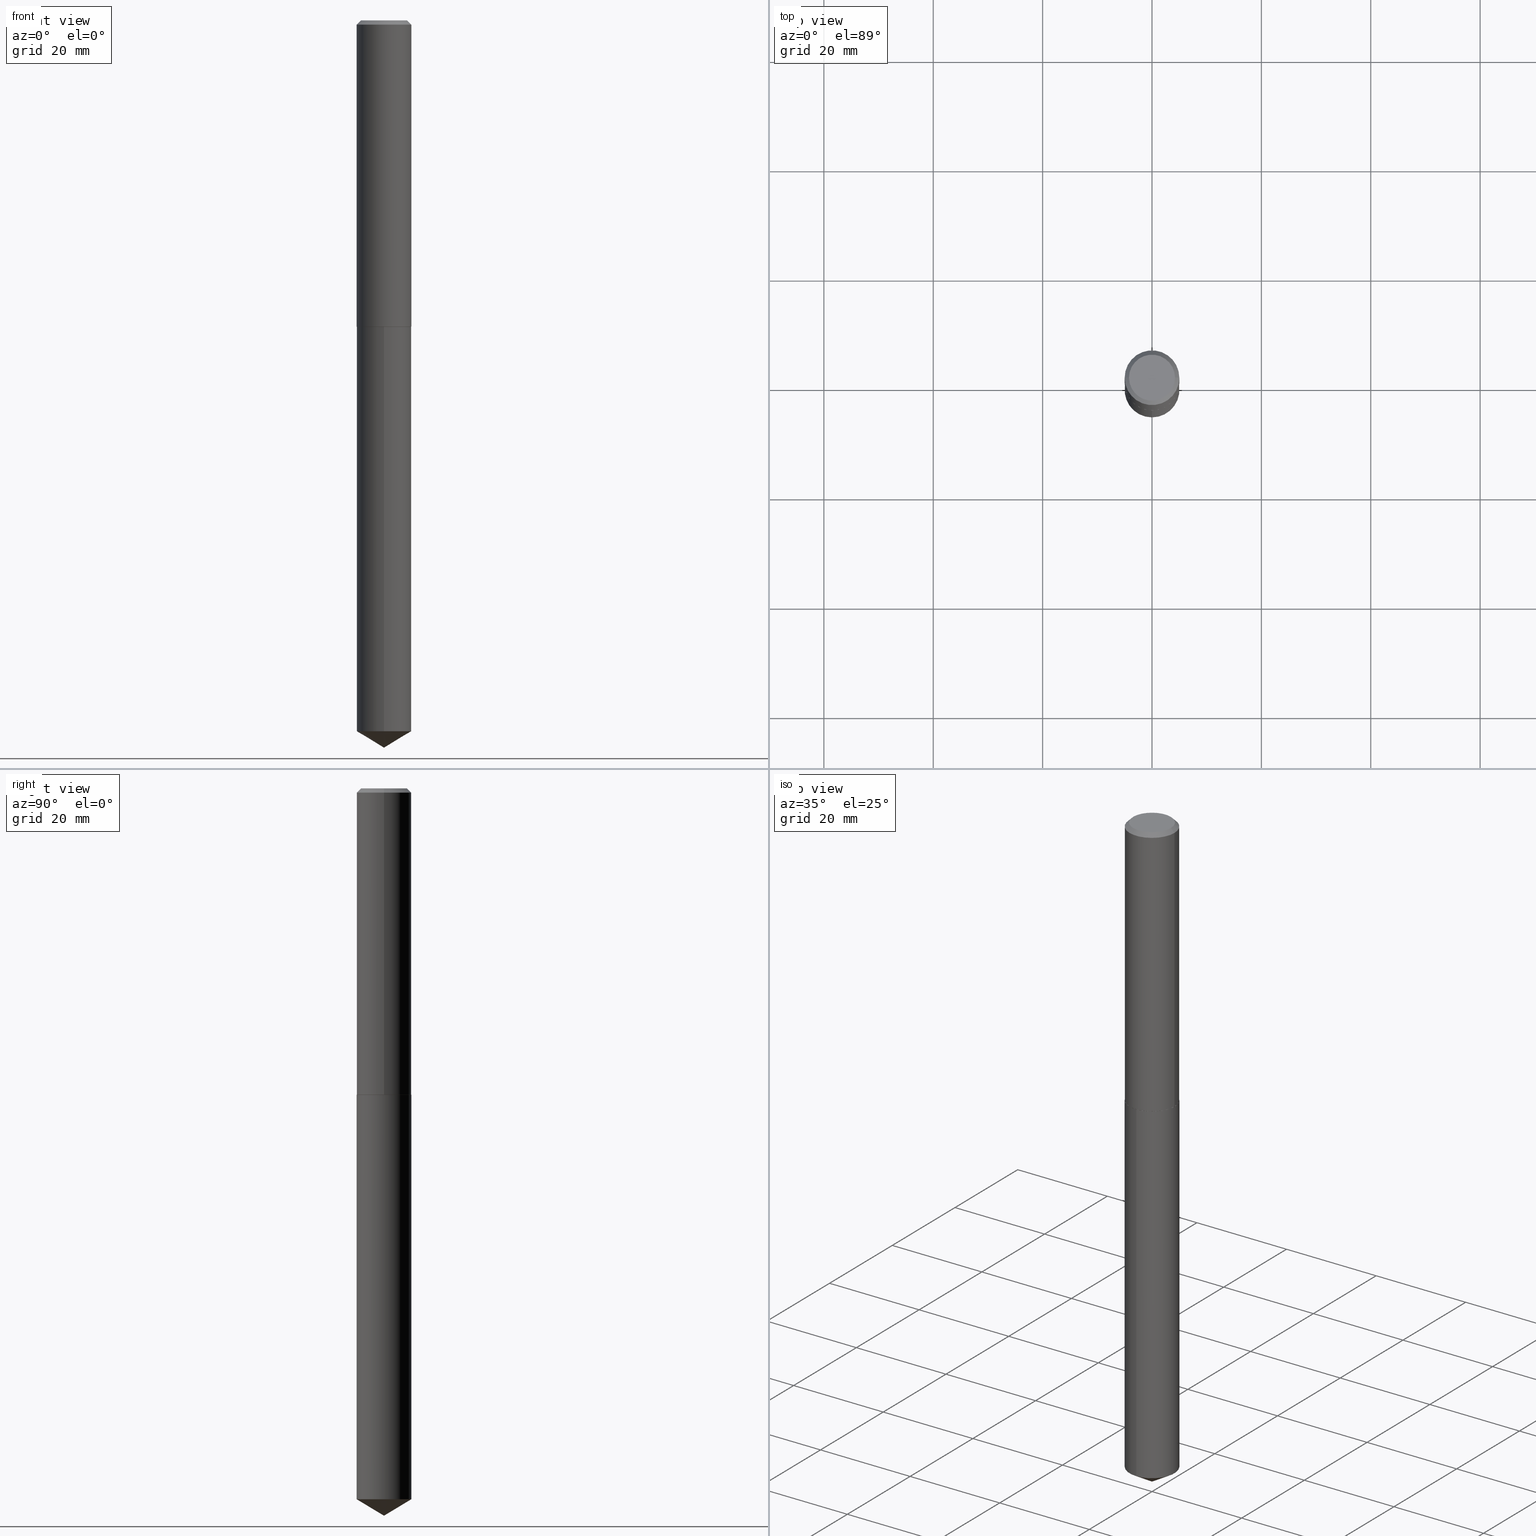
[diagram: canonical four-view strip — front | top / right | iso, engineering-drawing reading convention]
A machine part, canonical four-view strip (front | top / right | iso — engineering-drawing reading convention). The complete STEP part file that produces these views, byte-faithful:
ISO-10303-21;
HEADER;
FILE_DESCRIPTION (( 'STEP AP203' ),
    '1' );
FILE_NAME ('61043.STEP',
    '2024-04-23T02:37:16',
    ( '' ),
    ( '' ),
    'SwSTEP 2.0',
    'SolidWorks 2023',
    '' );
FILE_SCHEMA (( 'CONFIG_CONTROL_DESIGN' ));
ENDSEC;

DATA;
#1 = DIRECTION ( 'NONE',  ( -5.985567269335961790E-15, -0.8571673007021131108, 0.5150380749100526012 ) ) ;
#2 = DIRECTION ( 'NONE',  ( -2.445583250682407227E-29, 3.491317447809277816E-15, 1.000000000000000000 ) ) ;
#3 = EDGE_CURVE ( 'NONE', #120, #194, #353, .T. ) ;
#4 = PERSON_AND_ORGANIZATION_ROLE ( 'creator' ) ;
#5 = CARTESIAN_POINT ( 'NONE',  ( 1.251604855045994571E-28, -1.786864677296200502E-14, -5.117920587144426214 ) ) ;
#6 = ORIENTED_EDGE ( 'NONE', *, *, #260, .F. ) ;
#7 = DIRECTION ( 'NONE',  ( -2.445583250682407227E-29, 3.491317447809277816E-15, 1.000000000000000000 ) ) ;
#8 = ORIENTED_EDGE ( 'NONE', *, *, #22, .T. ) ;
#9 = DIRECTION ( 'NONE',  ( -6.982962677686265133E-15, -1.000000000000000000, 4.163344669033674845E-15 ) ) ;
#10 = ADVANCED_FACE ( 'NONE', ( #54 ), #164, .T. ) ;
#11 = UNCERTAINTY_MEASURE_WITH_UNIT (LENGTH_MEASURE( 1.000000000000000082E-05 ), #186, 'distance_accuracy_value', 'NONE');
#12 = CARTESIAN_POINT ( 'NONE',  ( 0.1655999999999999972, -1.297848145565570390E-15, 1.206277097168728884E-18 ) ) ;
#13 = DIRECTION ( 'NONE',  ( -2.445583250682407227E-29, 3.491317447809277816E-15, 1.000000000000000000 ) ) ;
#14 = DIRECTION ( 'NONE',  ( -2.445468806185136597E-29, 3.491481338843145583E-15, 1.000000000000000000 ) ) ;
#15 = PRODUCT_DEFINITION ( 'UNKNOWN', '', #365, #298 ) ;
#16 = PLANE ( 'NONE',  #43 ) ;
#17 = CALENDAR_DATE ( 2024, 22, 4 ) ;
#18 = EDGE_LOOP ( 'NONE', ( #278, #119, #130 ) ) ;
#19 = PERSON_AND_ORGANIZATION ( #39, #315 ) ;
#20 = CARTESIAN_POINT ( 'NONE',  ( -2.949913012720698115E-47, 4.211693974208535336E-33, 1.206277097160147711E-18 ) ) ;
#21 = DATE_AND_TIME ( #349, #299 ) ;
#22 = EDGE_CURVE ( 'NONE', #194, #33, #343, .T. ) ;
#23 = APPROVAL_STATUS ( 'not_yet_approved' ) ;
#24 = MANIFOLD_SOLID_BREP ( 'Body-Move/Copy2[1]', #141 ) ;
#25 =( NAMED_UNIT ( * ) SI_UNIT ( $, .STERADIAN. ) SOLID_ANGLE_UNIT ( ) );
#26 = LOCAL_TIME ( 22, 37, 16.00000000000000000, #53 ) ;
#27 = LINE ( 'NONE', #88, #327 ) ;
#28 = EDGE_CURVE ( 'NONE', #303, #30, #264, .T. ) ;
#29 = EDGE_LOOP ( 'NONE', ( #219, #8, #308, #348 ) ) ;
#30 = VERTEX_POINT ( 'NONE', #242 ) ;
#31 = LINE ( 'NONE', #267, #370 ) ;
#32 = AXIS2_PLACEMENT_3D ( 'NONE', #71, #302, #213 ) ;
#33 = VERTEX_POINT ( 'NONE', #37 ) ;
#34 = CARTESIAN_POINT ( 'NONE',  ( 0.000000000000000000, 0.000000000000000000, 0.000000000000000000 ) ) ;
#35 = ADVANCED_FACE ( 'NONE', ( #271 ), #96, .F. ) ;
#36 = APPROVAL_DATE_TIME ( #179, #346 ) ;
#37 = CARTESIAN_POINT ( 'NONE',  ( 1.398703375343882428E-15, 0.1968499999999922812, -2.204700000000001658 ) ) ;
#38 = CARTESIAN_POINT ( 'NONE',  ( 5.391525076996372398E-29, -7.697668907747486281E-15, -2.204700000000000770 ) ) ;
#39 = PERSON ( 'UNSPECIFIED', 'UNSPECIFIED', 'UNSPECIFIED', ('UNSPECIFIED'), ('UNSPECIFIED'), ('UNSPECIFIED') ) ;
#40 = FACE_OUTER_BOUND ( 'NONE', #273, .T. ) ;
#41 = ORIENTED_EDGE ( 'NONE', *, *, #151, .T. ) ;
#42 = VECTOR ( 'NONE', #94, 39.37007874015748143 ) ;
#43 = AXIS2_PLACEMENT_3D ( 'NONE', #133, #157, #247 ) ;
#44 = CARTESIAN_POINT ( 'NONE',  ( 5.390302342593279597E-29, -7.695923167078063988E-15, -2.204200000000000603 ) ) ;
#45 = FACE_OUTER_BOUND ( 'NONE', #240, .T. ) ;
#46 =( LENGTH_UNIT ( ) NAMED_UNIT ( * ) SI_UNIT ( $, .METRE. ) );
#47 = CARTESIAN_POINT ( 'NONE',  ( 0.1963500000000006351, -9.068773629511189615E-15, -2.204700000000000770 ) ) ;
#48 = LINE ( 'NONE', #195, #203 ) ;
#49 = EDGE_CURVE ( 'NONE', #347, #290, #27, .T. ) ;
#50 = FACE_OUTER_BOUND ( 'NONE', #351, .T. ) ;
#51 = DIRECTION ( 'NONE',  ( 1.000000000000000000, -6.982962677686266711E-15, 4.876220105038334323E-29 ) ) ;
#52 = APPROVAL_STATUS ( 'not_yet_approved' ) ;
#53 = COORDINATED_UNIVERSAL_TIME_OFFSET ( 5, 0, .BEHIND. ) ;
#54 = FACE_OUTER_BOUND ( 'NONE', #192, .T. ) ;
#55 = DIRECTION ( 'NONE',  ( -6.982962677686265133E-15, -1.000000000000000000, 5.551126225378232601E-15 ) ) ;
#56 = PERSON_AND_ORGANIZATION ( #39, #315 ) ;
#57 = ORIENTED_EDGE ( 'NONE', *, *, #147, .T. ) ;
#58 = DIRECTION ( 'NONE',  ( -2.445583250682407227E-29, 3.491317447809277816E-15, 1.000000000000000000 ) ) ;
#59 = CIRCLE ( 'NONE', #198, 0.1968500000000000250 ) ;
#60 = AXIS2_PLACEMENT_3D ( 'NONE', #100, #314, #279 ) ;
#61 = CONICAL_SURFACE ( 'NONE', #136, 0.1968500000000002748, 0.7853981633972092480 ) ;
#62 = CARTESIAN_POINT ( 'NONE',  ( 0.1968500000000000250, -1.459597822700175121E-15, -0.03125000000000020123 ) ) ;
#63 = ADVANCED_FACE ( 'NONE', ( #145 ), #280, .T. ) ;
#64 = CARTESIAN_POINT ( 'NONE',  ( 5.391525076996372398E-29, -7.697668907747486281E-15, -2.204700000000000770 ) ) ;
#65 = PERSON_AND_ORGANIZATION_ROLE ( 'classification_officer' ) ;
#66 = DIRECTION ( 'NONE',  ( -2.445468806185136597E-29, 3.491481338843145583E-15, 1.000000000000000000 ) ) ;
#67 = CLOSED_SHELL ( 'NONE', ( #366, #117, #380, #355, #169, #201, #63, #336 ) ) ;
#68 = CC_DESIGN_APPROVAL ( #285, ( #235 ) ) ;
#69 = COORDINATED_UNIVERSAL_TIME_OFFSET ( 5, 0, .BEHIND. ) ;
#70 = ORIENTED_EDGE ( 'NONE', *, *, #322, .F. ) ;
#71 = CARTESIAN_POINT ( 'NONE',  ( 5.390302342593279597E-29, -7.695923167078063988E-15, -2.204200000000000603 ) ) ;
#72 = ORIENTED_EDGE ( 'NONE', *, *, #113, .F. ) ;
#73 = CIRCLE ( 'NONE', #237, 0.1655999999999999972 ) ;
#74 = CC_DESIGN_PERSON_AND_ORGANIZATION_ASSIGNMENT ( #122, #206, ( #365 ) ) ;
#75 = DIRECTION ( 'NONE',  ( 1.000000000000000000, -6.982962677686264344E-15, 0.000000000000000000 ) ) ;
#76 = DIRECTION ( 'NONE',  ( -6.982962677686265133E-15, -1.000000000000000000, 5.551126225378232601E-15 ) ) ;
#77 = DIRECTION ( 'NONE',  ( -1.000000000000000000, 6.982962677686265922E-15, 0.000000000000000000 ) ) ;
#78 = LENGTH_MEASURE_WITH_UNIT ( LENGTH_MEASURE( 0.02539999999999999897 ), #46 );
#79 = DIRECTION ( 'NONE',  ( 1.000000000000000000, -6.982962677686265922E-15, 4.876176775795935793E-29 ) ) ;
#80 = DIRECTION ( 'NONE',  ( 1.000000000000000000, -6.982962677686264344E-15, 0.000000000000000000 ) ) ;
#81 = PERSON_AND_ORGANIZATION ( #39, #315 ) ;
#82 = CC_DESIGN_APPROVAL ( #346, ( #365 ) ) ;
#83 = DIRECTION ( 'NONE',  ( 1.000000000000000000, 0.000000000000000000, 0.000000000000000000 ) ) ;
#84 = DIRECTION ( 'NONE',  ( 2.445583250682406946E-29, -3.491317447809277816E-15, -1.000000000000000000 ) ) ;
#85 = PRODUCT_DEFINITION_SHAPE ( 'NONE', 'NONE',  #15 ) ;
#86 =( NAMED_UNIT ( * ) PLANE_ANGLE_UNIT ( ) SI_UNIT ( $, .RADIAN. ) );
#87 = CC_DESIGN_PERSON_AND_ORGANIZATION_ASSIGNMENT ( #319, #143, ( #297 ) ) ;
#88 = CARTESIAN_POINT ( 'NONE',  ( -0.1968500000000000250, 1.265487411263692705E-15, -0.03125000000000020123 ) ) ;
#89 = AXIS2_PLACEMENT_3D ( 'NONE', #321, #128, #374 ) ;
#90 = MECHANICAL_CONTEXT ( 'NONE', #286, 'mechanical' ) ;
#91 = CC_DESIGN_SECURITY_CLASSIFICATION ( #235, ( #365 ) ) ;
#92 = CARTESIAN_POINT ( 'NONE',  ( 5.391525076996372398E-29, -7.697668907747486281E-15, -2.204700000000000770 ) ) ;
#93 = CARTESIAN_POINT ( 'NONE',  ( 1.398703375343882428E-15, 0.1968499999999821504, -5.117920587144427103 ) ) ;
#94 = DIRECTION ( 'NONE',  ( -0.7071067811863784858, 7.493145998869743582E-15, 0.7071067811867165487 ) ) ;
#95 = CALENDAR_DATE ( 2024, 22, 4 ) ;
#96 = PLANE ( 'NONE',  #176 ) ;
#97 = DIRECTION ( 'NONE',  ( -2.445583250682407227E-29, 3.491317447809277816E-15, 1.000000000000000000 ) ) ;
#98 = EDGE_LOOP ( 'NONE', ( #204, #165, #132, #296 ) ) ;
#99 = EDGE_CURVE ( 'NONE', #144, #33, #291, .T. ) ;
#100 = CARTESIAN_POINT ( 'NONE',  ( -2.949913012720698115E-47, 4.211693974208535336E-33, 1.206277097160147711E-18 ) ) ;
#101 = VERTEX_POINT ( 'NONE', #47 ) ;
#102 = CONICAL_SURFACE ( 'NONE', #32, 0.1968500000000002748, 0.7853981633972092480 ) ;
#103 = DIRECTION ( 'NONE',  ( -2.445583250682407227E-29, 3.491317447809277816E-15, 1.000000000000000000 ) ) ;
#104 = CARTESIAN_POINT ( 'NONE',  ( 0.1968500000000002748, -9.070519370180607174E-15, -2.204200000000000603 ) ) ;
#105 = DIRECTION ( 'NONE',  ( -6.982962677686265922E-15, -1.000000000000000000, 3.468864327941552799E-15 ) ) ;
#106 = CARTESIAN_POINT ( 'NONE',  ( -0.1963500000000006351, -6.299869018908415824E-15, -2.204700000000000770 ) ) ;
#107 = VECTOR ( 'NONE', #309, 39.37007874015748143 ) ;
#108 = DIRECTION ( 'NONE',  ( -2.445468806185136597E-29, 3.491481338843145583E-15, 1.000000000000000000 ) ) ;
#109 = ORIENTED_EDGE ( 'NONE', *, *, #28, .F. ) ;
#110 = CALENDAR_DATE ( 2024, 22, 4 ) ;
#111 = AXIS2_PLACEMENT_3D ( 'NONE', #253, #227, #317 ) ;
#112 = ORIENTED_EDGE ( 'NONE', *, *, #99, .T. ) ;
#113 = EDGE_CURVE ( 'NONE', #347, #303, #73, .T. ) ;
#114 = ORIENTED_EDGE ( 'NONE', *, *, #322, .T. ) ;
#115 = APPROVAL_PERSON_ORGANIZATION ( #56, #285, #167 ) ;
#116 = LINE ( 'NONE', #334, #388 ) ;
#117 = ADVANCED_FACE ( 'NONE', ( #342 ), #287, .T. ) ;
#118 = PRODUCT_RELATED_PRODUCT_CATEGORY ( 'detail', '', ( #297 ) ) ;
#119 = ORIENTED_EDGE ( 'NONE', *, *, #220, .T. ) ;
#120 = VERTEX_POINT ( 'NONE', #161 ) ;
#121 = CIRCLE ( 'NONE', #378, 0.1968500000000000250 ) ;
#122 = PERSON_AND_ORGANIZATION ( #39, #315 ) ;
#123 = CC_DESIGN_DATE_AND_TIME_ASSIGNMENT ( #390, #152, ( #15 ) ) ;
#124 = DIRECTION ( 'NONE',  ( -6.982962677686265133E-15, -1.000000000000000000, 4.163344669033674845E-15 ) ) ;
#125 = DIRECTION ( 'NONE',  ( -6.982962677686265922E-15, -1.000000000000000000, 3.468864327941552799E-15 ) ) ;
#126 = DIRECTION ( 'NONE',  ( -2.445468806185136877E-29, 3.491481338843145188E-15, 1.000000000000000000 ) ) ;
#127 = LOCAL_TIME ( 22, 37, 16.00000000000000000, #170 ) ;
#128 = DIRECTION ( 'NONE',  ( -2.445583250682407227E-29, 3.491317447809277816E-15, 1.000000000000000000 ) ) ;
#129 = FACE_OUTER_BOUND ( 'NONE', #98, .T. ) ;
#130 = ORIENTED_EDGE ( 'NONE', *, *, #147, .F. ) ;
#131 = CARTESIAN_POINT ( 'NONE',  ( -0.1968500000000002748, -6.297219791734305412E-15, -2.204200000000000603 ) ) ;
#132 = ORIENTED_EDGE ( 'NONE', *, *, #183, .T. ) ;
#133 = CARTESIAN_POINT ( 'NONE',  ( -1.474956506360349058E-47, 2.105846987104267668E-33, 6.031385485800738553E-19 ) ) ;
#134 = CIRCLE ( 'NONE', #358, 0.1963500000000006351 ) ;
#135 = EDGE_LOOP ( 'NONE', ( #109, #72, #379, #254 ) ) ;
#136 = AXIS2_PLACEMENT_3D ( 'NONE', #223, #163, #184 ) ;
#137 = EDGE_CURVE ( 'NONE', #243, #194, #138, .T. ) ;
#138 = LINE ( 'NONE', #369, #153 ) ;
#139 = COORDINATED_UNIVERSAL_TIME_OFFSET ( 5, 0, .BEHIND. ) ;
#140 = ORIENTED_EDGE ( 'NONE', *, *, #137, .T. ) ;
#141 = CLOSED_SHELL ( 'NONE', ( #178, #293, #236, #10, #35 ) ) ;
#142 = CONICAL_SURFACE ( 'NONE', #282, 65.52281426576921319, 1.029744258676659641 ) ;
#143 = PERSON_AND_ORGANIZATION_ROLE ( 'design_owner' ) ;
#144 = VERTEX_POINT ( 'NONE', #344 ) ;
#145 = FACE_OUTER_BOUND ( 'NONE', #135, .T. ) ;
#146 = AXIS2_PLACEMENT_3D ( 'NONE', #92, #363, #208 ) ;
#147 = EDGE_CURVE ( 'NONE', #194, #120, #266, .T. ) ;
#148 = FACE_OUTER_BOUND ( 'NONE', #18, .T. ) ;
#149 = CARTESIAN_POINT ( 'NONE',  ( -0.1968500000000002748, -6.297219791734305412E-15, -2.204200000000000603 ) ) ;
#150 = ORIENTED_EDGE ( 'NONE', *, *, #183, .F. ) ;
#151 = EDGE_CURVE ( 'NONE', #269, #290, #158, .T. ) ;
#152 = DATE_TIME_ROLE ( 'creation_date' ) ;
#153 = VECTOR ( 'NONE', #381, 39.37007874015748143 ) ;
#154 = MANIFOLD_SOLID_BREP ( 'Body-Move/Copy2[2]', #67 ) ;
#155 = CARTESIAN_POINT ( 'NONE',  ( 5.391525076996372398E-29, -7.697668907747486281E-15, -2.204700000000000770 ) ) ;
#156 = ORIENTED_EDGE ( 'NONE', *, *, #166, .T. ) ;
#157 = DIRECTION ( 'NONE',  ( 2.438088387897960049E-29, -3.491481338843145188E-15, -1.000000000000000000 ) ) ;
#158 = LINE ( 'NONE', #248, #241 ) ;
#159 = CARTESIAN_POINT ( 'NONE',  ( 1.280556301722322257E-28, -1.828123642021894389E-14, -5.236200000000000188 ) ) ;
#160 = AXIS2_PLACEMENT_3D ( 'NONE', #258, #188, #376 ) ;
#161 = CARTESIAN_POINT ( 'NONE',  ( -1.374596203102416574E-15, -0.1968500000000178718, -5.117920587144425326 ) ) ;
#162 = DIRECTION ( 'NONE',  ( 1.000000000000000000, -6.982962677686265922E-15, 0.000000000000000000 ) ) ;
#163 = DIRECTION ( 'NONE',  ( -2.445468806185136597E-29, 3.491481338843145583E-15, 1.000000000000000000 ) ) ;
#164 = CYLINDRICAL_SURFACE ( 'NONE', #89, 0.1968500000000000250 ) ;
#165 = ORIENTED_EDGE ( 'NONE', *, *, #28, .T. ) ;
#166 = EDGE_CURVE ( 'NONE', #120, #144, #116, .T. ) ;
#167 = APPROVAL_ROLE ( '' ) ;
#168 = AXIS2_PLACEMENT_3D ( 'NONE', #372, #345, #79 ) ;
#169 = ADVANCED_FACE ( 'NONE', ( #300 ), #102, .T. ) ;
#170 = COORDINATED_UNIVERSAL_TIME_OFFSET ( 5, 0, .BEHIND. ) ;
#171 = ORIENTED_EDGE ( 'NONE', *, *, #225, .F. ) ;
#172 = AXIS2_PLACEMENT_3D ( 'NONE', #245, #7, #125 ) ;
#173 = LOCAL_TIME ( 22, 37, 16.00000000000000000, #69 ) ;
#174 = DIRECTION ( 'NONE',  ( -0.7071067811865453523, 2.468850131082234184E-15, -0.7071067811865496822 ) ) ;
#175 = ORIENTED_EDGE ( 'NONE', *, *, #328, .F. ) ;
#176 = AXIS2_PLACEMENT_3D ( 'NONE', #64, #84, #234 ) ;
#177 = LINE ( 'NONE', #149, #42 ) ;
#178 = ADVANCED_FACE ( 'NONE', ( #337 ), #335, .T. ) ;
#179 = DATE_AND_TIME ( #95, #173 ) ;
#180 = CARTESIAN_POINT ( 'NONE',  ( 7.642090019328601786E-31, -1.091087918388490144E-16, -0.03125000000000020123 ) ) ;
#181 = LINE ( 'NONE', #104, #107 ) ;
#182 = ORIENTED_EDGE ( 'NONE', *, *, #283, .T. ) ;
#183 = EDGE_CURVE ( 'NONE', #30, #290, #121, .T. ) ;
#184 = DIRECTION ( 'NONE',  ( 1.000000000000000000, -6.982962677686264344E-15, 0.000000000000000000 ) ) ;
#185 = CARTESIAN_POINT ( 'NONE',  ( 1.398703375343810839E-15, 0.1968499999999923367, -2.204700000000001658 ) ) ;
#186 =( CONVERSION_BASED_UNIT ( 'INCH', #78 ) LENGTH_UNIT ( ) NAMED_UNIT ( #295 ) );
#187 = AXIS2_PLACEMENT_3D ( 'NONE', #310, #13, #218 ) ;
#188 = DIRECTION ( 'NONE',  ( -2.445468806185136597E-29, 3.491481338843145583E-15, 1.000000000000000000 ) ) ;
#189 = LOCAL_TIME ( 22, 37, 16.00000000000000000, #383 ) ;
#190 = CARTESIAN_POINT ( 'NONE',  ( 5.391525076996372398E-29, -7.697668907747486281E-15, -2.204700000000000770 ) ) ;
#191 = APPROVAL ( #52, 'UNSPECIFIED' ) ;
#192 = EDGE_LOOP ( 'NONE', ( #244, #57, #156, #326 ) ) ;
#193 = ORIENTED_EDGE ( 'NONE', *, *, #306, .T. ) ;
#194 = VERTEX_POINT ( 'NONE', #93 ) ;
#195 = CARTESIAN_POINT ( 'NONE',  ( 0.1968500000000001360, -1.374596203102542594E-15, 9.598753983154306463E-30 ) ) ;
#196 = CC_DESIGN_PERSON_AND_ORGANIZATION_ASSIGNMENT ( #238, #65, ( #235 ) ) ;
#197 = PERSON_AND_ORGANIZATION_ROLE ( 'creator' ) ;
#198 = AXIS2_PLACEMENT_3D ( 'NONE', #368, #108, #162 ) ;
#199 = AXIS2_PLACEMENT_3D ( 'NONE', #221, #341, #77 ) ;
#200 = DATE_TIME_ROLE ( 'classification_date' ) ;
#201 = ADVANCED_FACE ( 'NONE', ( #40 ), #275, .T. ) ;
#202 = CIRCLE ( 'NONE', #274, 0.1968500000000000250 ) ;
#203 = VECTOR ( 'NONE', #126, 39.37007874015748143 ) ;
#204 = ORIENTED_EDGE ( 'NONE', *, *, #251, .F. ) ;
#205 = ORIENTED_EDGE ( 'NONE', *, *, #268, .T. ) ;
#206 = PERSON_AND_ORGANIZATION_ROLE ( 'design_supplier' ) ;
#207 = EDGE_CURVE ( 'NONE', #101, #324, #210, .T. ) ;
#208 = DIRECTION ( 'NONE',  ( 1.000000000000000000, -6.982962677686268288E-15, 0.000000000000000000 ) ) ;
#209 = ORIENTED_EDGE ( 'NONE', *, *, #207, .T. ) ;
#210 = CIRCLE ( 'NONE', #146, 0.1963500000000006351 ) ;
#211 = DIRECTION ( 'NONE',  ( 0.7071067811865453523, -7.319954787623248157E-15, -0.7071067811865496822 ) ) ;
#212 = ADVANCED_BREP_SHAPE_REPRESENTATION ( '61043', ( #24, #154, #228 ), #292 ) ;
#213 = DIRECTION ( 'NONE',  ( 1.000000000000000000, -6.982962677686264344E-15, 0.000000000000000000 ) ) ;
#214 = ORIENTED_EDGE ( 'NONE', *, *, #225, .T. ) ;
#215 = AXIS2_PLACEMENT_3D ( 'NONE', #38, #97, #124 ) ;
#216 = CARTESIAN_POINT ( 'NONE',  ( -0.1968500000000000250, -2.503812604114697574E-15, -0.03125000000000020123 ) ) ;
#217 = AXIS2_PLACEMENT_3D ( 'NONE', #375, #14, #75 ) ;
#218 = DIRECTION ( 'NONE',  ( -6.982962677686265133E-15, -1.000000000000000000, 4.163344669033674845E-15 ) ) ;
#219 = ORIENTED_EDGE ( 'NONE', *, *, #3, .T. ) ;
#220 = EDGE_CURVE ( 'NONE', #243, #120, #31, .T. ) ;
#221 = CARTESIAN_POINT ( 'NONE',  ( 7.642090019328601786E-31, -1.091087918388490144E-16, -0.03125000000000020123 ) ) ;
#222 = ORIENTED_EDGE ( 'NONE', *, *, #328, .T. ) ;
#223 = CARTESIAN_POINT ( 'NONE',  ( 5.390302342593279597E-29, -7.695923167078063988E-15, -2.204200000000000603 ) ) ;
#224 = CARTESIAN_POINT ( 'NONE',  ( -0.1655999999999999972, 1.210933015344269141E-15, 1.206277097151870064E-18 ) ) ;
#225 = EDGE_CURVE ( 'NONE', #324, #269, #177, .T. ) ;
#226 = CIRCLE ( 'NONE', #60, 0.1655999999999999972 ) ;
#227 = DIRECTION ( 'NONE',  ( 2.445468806185136597E-29, -3.491481338843145583E-15, -1.000000000000000000 ) ) ;
#228 = AXIS2_PLACEMENT_3D ( 'NONE', #356, #352, #83 ) ;
#229 = CARTESIAN_POINT ( 'NONE',  ( 0.1968500000000002748, -9.070519370180607174E-15, -2.204200000000000603 ) ) ;
#230 = CARTESIAN_POINT ( 'NONE',  ( 1.251604855045994571E-28, -1.786864677296200502E-14, -5.117920587144426214 ) ) ;
#231 = EDGE_LOOP ( 'NONE', ( #171, #182, #222, #311 ) ) ;
#232 = DATE_AND_TIME ( #110, #189 ) ;
#233 = APPROVAL_DATE_TIME ( #289, #285 ) ;
#234 = DIRECTION ( 'NONE',  ( 6.982962677686265922E-15, 1.000000000000000000, -3.491317447809277816E-15 ) ) ;
#235 = SECURITY_CLASSIFICATION ( '', '', #265 ) ;
#236 = ADVANCED_FACE ( 'NONE', ( #148 ), #261, .T. ) ;
#237 = AXIS2_PLACEMENT_3D ( 'NONE', #20, #340, #51 ) ;
#238 = PERSON_AND_ORGANIZATION ( #39, #315 ) ;
#239 = DIRECTION ( 'NONE',  ( -2.445468806185136597E-29, 3.491481338843145583E-15, 1.000000000000000000 ) ) ;
#240 = EDGE_LOOP ( 'NONE', ( #389, #301 ) ) ;
#241 = VECTOR ( 'NONE', #250, 39.37007874015748143 ) ;
#242 = CARTESIAN_POINT ( 'NONE',  ( 0.1968500000000000250, -1.483704994941390709E-15, -0.03125000000000020123 ) ) ;
#243 = VERTEX_POINT ( 'NONE', #159 ) ;
#244 = ORIENTED_EDGE ( 'NONE', *, *, #22, .F. ) ;
#245 = CARTESIAN_POINT ( 'NONE',  ( -8.347749444353658184E-28, 1.191718450763556276E-13, 34.13387874015747769 ) ) ;
#246 = CC_DESIGN_PERSON_AND_ORGANIZATION_ASSIGNMENT ( #81, #197, ( #15 ) ) ;
#247 = DIRECTION ( 'NONE',  ( -1.000000000000000000, 6.982962677686265922E-15, -4.876176775795935793E-29 ) ) ;
#248 = CARTESIAN_POINT ( 'NONE',  ( -0.1968500000000001360, 1.398703375343758182E-15, -9.682923725166790684E-30 ) ) ;
#249 = CARTESIAN_POINT ( 'NONE',  ( -8.347749444353658184E-28, 1.191718450763556276E-13, 34.13387874015747769 ) ) ;
#250 = DIRECTION ( 'NONE',  ( -2.445468806185136877E-29, 3.491481338843145188E-15, 1.000000000000000000 ) ) ;
#251 = EDGE_CURVE ( 'NONE', #303, #347, #226, .T. ) ;
#252 = FACE_OUTER_BOUND ( 'NONE', #312, .T. ) ;
#253 = CARTESIAN_POINT ( 'NONE',  ( 7.642090019328601786E-31, -1.091087918388490144E-16, -0.03125000000000020123 ) ) ;
#254 = ORIENTED_EDGE ( 'NONE', *, *, #260, .T. ) ;
#255 = FACE_OUTER_BOUND ( 'NONE', #373, .T. ) ;
#256 = AXIS2_PLACEMENT_3D ( 'NONE', #34, #239, #360 ) ;
#257 = CONICAL_SURFACE ( 'NONE', #199, 0.1968500000000000250, 0.7853981633974452814 ) ;
#258 = CARTESIAN_POINT ( 'NONE',  ( 0.000000000000000000, 0.000000000000000000, 0.000000000000000000 ) ) ;
#259 = APPROVAL_ROLE ( '' ) ;
#260 = EDGE_CURVE ( 'NONE', #290, #30, #59, .T. ) ;
#261 = CONICAL_SURFACE ( 'NONE', #172, 65.52281426576921319, 1.029744258676659641 ) ;
#262 = CC_DESIGN_DATE_AND_TIME_ASSIGNMENT ( #21, #200, ( #235 ) ) ;
#263 = APPLICATION_PROTOCOL_DEFINITION ( 'international standard', 'config_control_design', 1994, #333 ) ;
#264 = LINE ( 'NONE', #62, #364 ) ;
#265 = SECURITY_CLASSIFICATION_LEVEL ( 'unclassified' ) ;
#266 = CIRCLE ( 'NONE', #305, 0.1968500000000000250 ) ;
#267 = CARTESIAN_POINT ( 'NONE',  ( 1.280505838565695583E-28, -1.828195908134367894E-14, -5.236200000000000188 ) ) ;
#268 = EDGE_CURVE ( 'NONE', #33, #144, #202, .T. ) ;
#269 = VERTEX_POINT ( 'NONE', #131 ) ;
#270 = PERSON_AND_ORGANIZATION ( #39, #315 ) ;
#271 = FACE_OUTER_BOUND ( 'NONE', #272, .T. ) ;
#272 = EDGE_LOOP ( 'NONE', ( #112, #205 ) ) ;
#273 = EDGE_LOOP ( 'NONE', ( #304, #367, #193, #6 ) ) ;
#274 = AXIS2_PLACEMENT_3D ( 'NONE', #190, #377, #9 ) ;
#275 = CYLINDRICAL_SURFACE ( 'NONE', #256, 0.1968500000000001360 ) ;
#276 = CC_DESIGN_PERSON_AND_ORGANIZATION_ASSIGNMENT ( #270, #4, ( #365 ) ) ;
#277 = DIRECTION ( 'NONE',  ( 1.000000000000000000, -6.982962677686268288E-15, 0.000000000000000000 ) ) ;
#278 = ORIENTED_EDGE ( 'NONE', *, *, #137, .F. ) ;
#279 = DIRECTION ( 'NONE',  ( 1.000000000000000000, -6.982962677686266711E-15, 4.876220105038334323E-29 ) ) ;
#280 = CONICAL_SURFACE ( 'NONE', #111, 0.1968500000000000250, 0.7853981633974452814 ) ;
#281 = PLANE ( 'NONE',  #168 ) ;
#282 = AXIS2_PLACEMENT_3D ( 'NONE', #249, #339, #105 ) ;
#283 = EDGE_CURVE ( 'NONE', #324, #101, #134, .T. ) ;
#284 = DIRECTION ( 'NONE',  ( -2.445468806185136597E-29, 3.491481338843145583E-15, 1.000000000000000000 ) ) ;
#285 = APPROVAL ( #23, 'UNSPECIFIED' ) ;
#286 = APPLICATION_CONTEXT ( 'configuration controlled 3d designs of mechanical parts and assemblies' ) ;
#287 = CYLINDRICAL_SURFACE ( 'NONE', #160, 0.1968500000000001360 ) ;
#288 = ORIENTED_EDGE ( 'NONE', *, *, #3, .F. ) ;
#289 = DATE_AND_TIME ( #17, #127 ) ;
#290 = VERTEX_POINT ( 'NONE', #216 ) ;
#291 = CIRCLE ( 'NONE', #187, 0.1968500000000000250 ) ;
#292 =( GEOMETRIC_REPRESENTATION_CONTEXT ( 3 ) GLOBAL_UNCERTAINTY_ASSIGNED_CONTEXT ( ( #11 ) ) GLOBAL_UNIT_ASSIGNED_CONTEXT ( ( #186, #86, #25 ) ) REPRESENTATION_CONTEXT ( 'NONE', 'WORKASPACE' ) );
#293 = ADVANCED_FACE ( 'NONE', ( #252 ), #142, .T. ) ;
#294 = PERSON_AND_ORGANIZATION ( #39, #315 ) ;
#295 = DIMENSIONAL_EXPONENTS ( 1.000000000000000000, 0.000000000000000000, 0.000000000000000000, 0.000000000000000000, 0.000000000000000000, 0.000000000000000000, 0.000000000000000000 ) ;
#296 = ORIENTED_EDGE ( 'NONE', *, *, #49, .F. ) ;
#297 = PRODUCT ( '61043', '61043', '', ( #90 ) ) ;
#298 = DESIGN_CONTEXT ( 'detailed design', #333, 'design' ) ;
#299 = LOCAL_TIME ( 22, 37, 16.00000000000000000, #139 ) ;
#300 = FACE_OUTER_BOUND ( 'NONE', #231, .T. ) ;
#301 = ORIENTED_EDGE ( 'NONE', *, *, #251, .T. ) ;
#302 = DIRECTION ( 'NONE',  ( -2.445468806185136597E-29, 3.491481338843145583E-15, 1.000000000000000000 ) ) ;
#303 = VERTEX_POINT ( 'NONE', #12 ) ;
#304 = ORIENTED_EDGE ( 'NONE', *, *, #151, .F. ) ;
#305 = AXIS2_PLACEMENT_3D ( 'NONE', #230, #103, #76 ) ;
#306 = EDGE_CURVE ( 'NONE', #371, #30, #48, .T. ) ;
#307 = CIRCLE ( 'NONE', #217, 0.1968500000000002748 ) ;
#308 = ORIENTED_EDGE ( 'NONE', *, *, #99, .F. ) ;
#309 = DIRECTION ( 'NONE',  ( 0.7071067811863784858, -2.468850131080486462E-15, 0.7071067811867165487 ) ) ;
#310 = CARTESIAN_POINT ( 'NONE',  ( 5.391525076996372398E-29, -7.697668907747486281E-15, -2.204700000000000770 ) ) ;
#311 = ORIENTED_EDGE ( 'NONE', *, *, #325, .F. ) ;
#312 = EDGE_LOOP ( 'NONE', ( #382, #140, #288 ) ) ;
#313 = VECTOR ( 'NONE', #384, 39.37007874015748143 ) ;
#314 = DIRECTION ( 'NONE',  ( -2.445468806185136597E-29, 3.491481338843145583E-15, 1.000000000000000000 ) ) ;
#315 = ORGANIZATION ( 'UNSPECIFIED', 'UNSPECIFIED', '' ) ;
#316 = DIRECTION ( 'NONE',  ( -2.445468806185136597E-29, 3.491481338843145583E-15, 1.000000000000000000 ) ) ;
#317 = DIRECTION ( 'NONE',  ( -1.000000000000000000, 6.982962677686265922E-15, 0.000000000000000000 ) ) ;
#318 = ORIENTED_EDGE ( 'NONE', *, *, #306, .F. ) ;
#319 = PERSON_AND_ORGANIZATION ( #39, #315 ) ;
#320 = EDGE_LOOP ( 'NONE', ( #114, #41, #150, #318 ) ) ;
#321 = CARTESIAN_POINT ( 'NONE',  ( 5.391525076996372398E-29, -7.697668907747486281E-15, -2.204700000000000770 ) ) ;
#322 = EDGE_CURVE ( 'NONE', #371, #269, #307, .T. ) ;
#323 = CC_DESIGN_APPROVAL ( #191, ( #15 ) ) ;
#324 = VERTEX_POINT ( 'NONE', #106 ) ;
#325 = EDGE_CURVE ( 'NONE', #269, #371, #338, .T. ) ;
#326 = ORIENTED_EDGE ( 'NONE', *, *, #268, .F. ) ;
#327 = VECTOR ( 'NONE', #174, 39.37007874015748143 ) ;
#328 = EDGE_CURVE ( 'NONE', #101, #371, #181, .T. ) ;
#329 = APPROVAL_ROLE ( '' ) ;
#330 = ORIENTED_EDGE ( 'NONE', *, *, #207, .F. ) ;
#331 = APPROVAL_PERSON_ORGANIZATION ( #19, #191, #259 ) ;
#332 = APPROVAL_STATUS ( 'not_yet_approved' ) ;
#333 = APPLICATION_CONTEXT ( 'configuration controlled 3d designs of mechanical parts and assemblies' ) ;
#334 = CARTESIAN_POINT ( 'NONE',  ( -1.374596203102487571E-15, -0.1968500000000076855, -2.204699999999999882 ) ) ;
#335 = CYLINDRICAL_SURFACE ( 'NONE', #215, 0.1968500000000000250 ) ;
#336 = ADVANCED_FACE ( 'NONE', ( #45 ), #16, .F. ) ;
#337 = FACE_OUTER_BOUND ( 'NONE', #29, .T. ) ;
#338 = CIRCLE ( 'NONE', #354, 0.1968500000000002748 ) ;
#339 = DIRECTION ( 'NONE',  ( -2.445583250682407227E-29, 3.491317447809277816E-15, 1.000000000000000000 ) ) ;
#340 = DIRECTION ( 'NONE',  ( -2.445468806185136597E-29, 3.491481338843145583E-15, 1.000000000000000000 ) ) ;
#341 = DIRECTION ( 'NONE',  ( 2.445468806185136597E-29, -3.491481338843145583E-15, -1.000000000000000000 ) ) ;
#342 = FACE_OUTER_BOUND ( 'NONE', #320, .T. ) ;
#343 = LINE ( 'NONE', #185, #313 ) ;
#344 = CARTESIAN_POINT ( 'NONE',  ( -1.374596203102487571E-15, -0.1968500000000076855, -2.204699999999999882 ) ) ;
#345 = DIRECTION ( 'NONE',  ( -2.438088387897960049E-29, 3.491481338843145188E-15, 1.000000000000000000 ) ) ;
#346 = APPROVAL ( #332, 'UNSPECIFIED' ) ;
#347 = VERTEX_POINT ( 'NONE', #224 ) ;
#348 = ORIENTED_EDGE ( 'NONE', *, *, #166, .F. ) ;
#349 = CALENDAR_DATE ( 2024, 22, 4 ) ;
#350 = APPROVAL_DATE_TIME ( #232, #191 ) ;
#351 = EDGE_LOOP ( 'NONE', ( #330, #387 ) ) ;
#352 = DIRECTION ( 'NONE',  ( 0.000000000000000000, 0.000000000000000000, 1.000000000000000000 ) ) ;
#353 = CIRCLE ( 'NONE', #386, 0.1968500000000000250 ) ;
#354 = AXIS2_PLACEMENT_3D ( 'NONE', #44, #316, #80 ) ;
#355 = ADVANCED_FACE ( 'NONE', ( #50 ), #281, .F. ) ;
#356 = CARTESIAN_POINT ( 'NONE',  ( 0.000000000000000000, 0.000000000000000000, 0.000000000000000000 ) ) ;
#357 = APPLICATION_PROTOCOL_DEFINITION ( 'international standard', 'config_control_design', 1994, #286 ) ;
#358 = AXIS2_PLACEMENT_3D ( 'NONE', #155, #284, #277 ) ;
#359 = APPROVAL_PERSON_ORGANIZATION ( #294, #346, #329 ) ;
#360 = DIRECTION ( 'NONE',  ( 1.000000000000000000, -6.982962677686266711E-15, 4.876176775795935793E-29 ) ) ;
#361 = DIRECTION ( 'NONE',  ( 1.000000000000000000, -6.982962677686265922E-15, 0.000000000000000000 ) ) ;
#362 = CALENDAR_DATE ( 2024, 22, 4 ) ;
#363 = DIRECTION ( 'NONE',  ( -2.445468806185136597E-29, 3.491481338843145583E-15, 1.000000000000000000 ) ) ;
#364 = VECTOR ( 'NONE', #211, 39.37007874015748143 ) ;
#365 = PRODUCT_DEFINITION_FORMATION_WITH_SPECIFIED_SOURCE ( 'ANY', '', #297, .NOT_KNOWN. ) ;
#366 = ADVANCED_FACE ( 'NONE', ( #129 ), #257, .T. ) ;
#367 = ORIENTED_EDGE ( 'NONE', *, *, #325, .T. ) ;
#368 = CARTESIAN_POINT ( 'NONE',  ( 7.642090019328601786E-31, -1.091087918388490144E-16, -0.03125000000000020123 ) ) ;
#369 = CARTESIAN_POINT ( 'NONE',  ( 1.280556744224638755E-28, -1.828123642021894389E-14, -5.236200000000000188 ) ) ;
#370 = VECTOR ( 'NONE', #1, 39.37007874015748854 ) ;
#371 = VERTEX_POINT ( 'NONE', #229 ) ;
#372 = CARTESIAN_POINT ( 'NONE',  ( 7.533502297421292179E-29, -4.630235614326760147E-15, -2.204700000000000770 ) ) ;
#373 = EDGE_LOOP ( 'NONE', ( #209, #214, #70, #175 ) ) ;
#374 = DIRECTION ( 'NONE',  ( -6.982962677686265133E-15, -1.000000000000000000, 4.163344669033674845E-15 ) ) ;
#375 = CARTESIAN_POINT ( 'NONE',  ( 5.390302342593279597E-29, -7.695923167078063988E-15, -2.204200000000000603 ) ) ;
#376 = DIRECTION ( 'NONE',  ( 1.000000000000000000, -6.982962677686266711E-15, 4.876176775795935793E-29 ) ) ;
#377 = DIRECTION ( 'NONE',  ( -2.445583250682407227E-29, 3.491317447809277816E-15, 1.000000000000000000 ) ) ;
#378 = AXIS2_PLACEMENT_3D ( 'NONE', #180, #66, #361 ) ;
#379 = ORIENTED_EDGE ( 'NONE', *, *, #49, .T. ) ;
#380 = ADVANCED_FACE ( 'NONE', ( #255 ), #61, .T. ) ;
#381 = DIRECTION ( 'NONE',  ( 6.090539988449798946E-15, 0.8571673007021168855, 0.5150380749100467170 ) ) ;
#382 = ORIENTED_EDGE ( 'NONE', *, *, #220, .F. ) ;
#383 = COORDINATED_UNIVERSAL_TIME_OFFSET ( 5, 0, .BEHIND. ) ;
#384 = DIRECTION ( 'NONE',  ( -2.445583250682407227E-29, 3.491317447809277816E-15, 1.000000000000000000 ) ) ;
#385 = SHAPE_DEFINITION_REPRESENTATION ( #85, #212 ) ;
#386 = AXIS2_PLACEMENT_3D ( 'NONE', #5, #58, #55 ) ;
#387 = ORIENTED_EDGE ( 'NONE', *, *, #283, .F. ) ;
#388 = VECTOR ( 'NONE', #2, 39.37007874015748143 ) ;
#389 = ORIENTED_EDGE ( 'NONE', *, *, #113, .T. ) ;
#390 = DATE_AND_TIME ( #362, #26 ) ;
ENDSEC;
END-ISO-10303-21;
